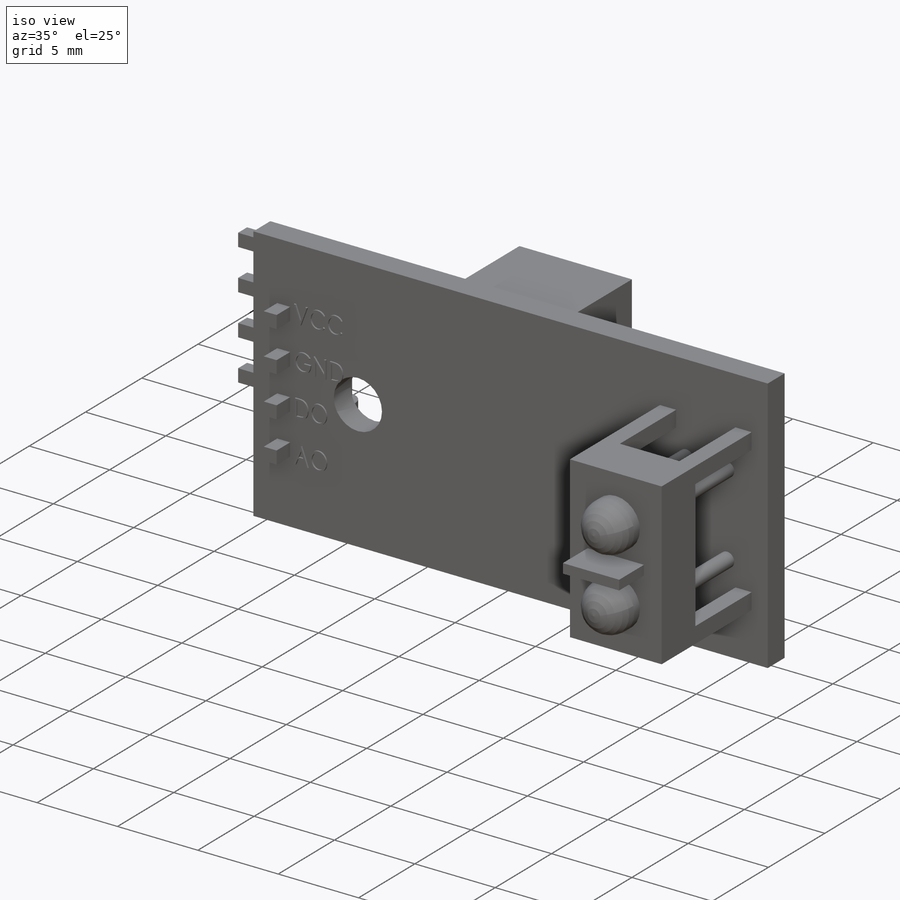
[diagram: iso view]
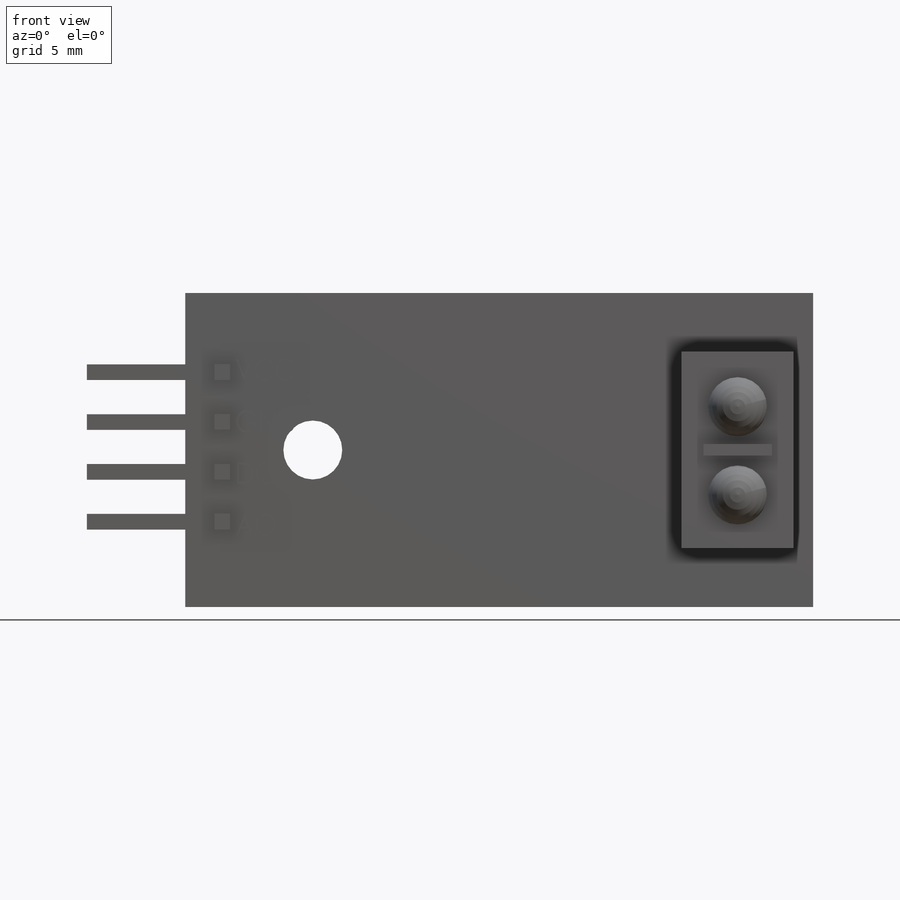
[diagram: front view]
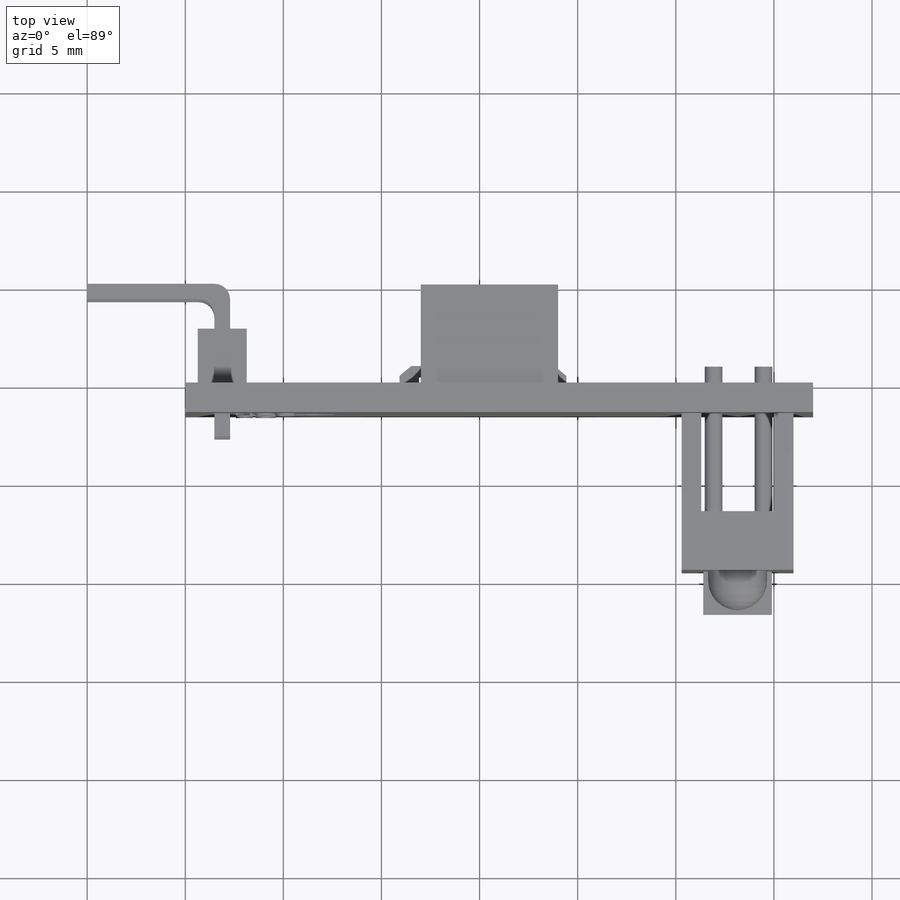
[diagram: top view]
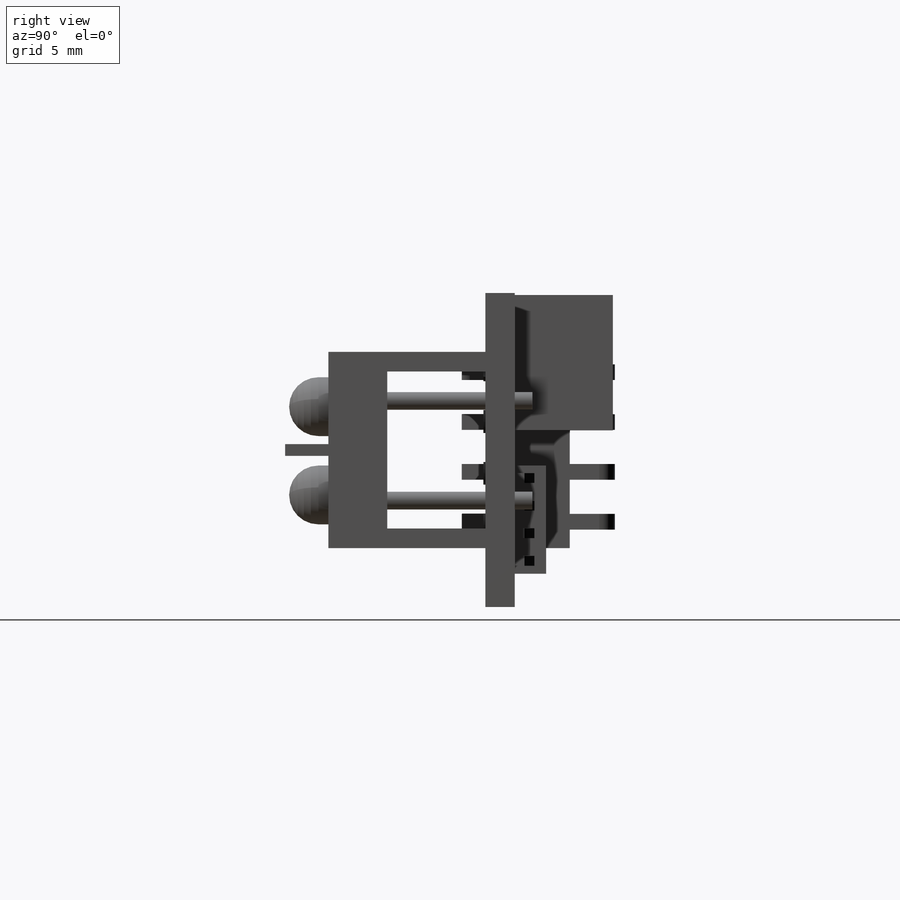
[diagram: right view]
SOLIDWORKS PART (.sldprt)
format: sldprt  version: not decoded by parser v0  size: 1,047,040 bytes
history: native  units: mm
features: sketch x21, extrude x13, cut_extrude x8, plane x3, fillet x2, chamfer x2, material x1 (+8 scaffold rows collapsed)
feature tree (58):
  scaffold x8  (default folders/planes/origin — collapsed)
  material  "Материал <не указан>"
  plane  "Спереди"
  plane  "Сверху"
  plane  "Справа"
  sketch  "Эскиз1"  dims[D3=3.0mm D1=32.0mm D2=16.0mm D4=6.5mm]
  extrude  "Бобышка-Вытянуть1"  Depth=1.5mm
  sketch  "Эскиз2"  dims[D1=10.0mm D2=5.7mm D3=1.0mm]
  extrude  "Бобышка-Вытянуть2"  Depth=8mm
  sketch  "Эскиз3"  dims[D1=0.6mm D2=3.5mm]
  extrude  "Бобышка-Вытянуть3"  Depth=2.2mm
  sketch  "Эскиз4"  dims[D2=3.0mm D1=4.5mm]
  extrude  "Бобышка-Вытянуть4"  Depth=2mm
  fillet  "Скругление1"  Radius=1.5mm
  sketch  "Эскиз5"  dims[D1=5.0mm D2=1.0mm D3=1.0mm]
  cut_extrude  "Вырез-Вытянуть1"  [1 undecoded]
  sketch  "Эскиз7"  dims[D1=5.0mm D2=1.0mm D3=1.0mm]
  cut_extrude  "Вырез-Вытянуть2"  [1 undecoded]
  sketch  "Эскиз8"  dims[D1=7.0mm D2=12.0mm]
  extrude  "Бобышка-Вытянуть5"  Depth=5mm
  sketch  "Эскиз9"  dims[D1=3.2mm]
  cut_extrude  "Вырез-Вытянуть3"  Depth=0.1mm
  sketch  "Эскиз10"  dims[D1=0.2mm D2=0.2mm]
  cut_extrude  "Вырез-Вытянуть4"  Depth=1mm
  sketch  "Эскиз11"  dims[D1=10.0mm D2=2.5mm]
  extrude  "Бобышка-Вытянуть6"  Depth=2.8mm
  sketch  "Эскиз12"  dims[D1=0.8mm D2=0.635mm D3=4.0]
  extrude  "Бобышка-Вытянуть7"  Depth=2.3mm
  sketch  "Эскиз13"  dims[D1=4.0]
  extrude  "Бобышка-Вытянуть8"  Depth=6.5mm
  fillet  "Скругление2"  Radius=0.8mm
  sketch  "Эскиз14"  dims[D1=0.8mm D2=4.0]
  extrude  "Бобышка-Вытянуть9"  Depth=1.2mm
  sketch  "Эскиз15"
  extrude  "Бобышка-Вытянуть10"  Depth=0.1mm
  sketch  "Эскиз16"
  cut_extrude  "Вырез-Вытянуть5"  Depth=0.1mm
  sketch  "Эскиз17"  dims[D1=0.9mm D2=2.0 D3=2.0]
  extrude  "Бобышка-Вытянуть11"  Depth=0.9mm
  sketch  "Эскиз18"  dims[D1=4.5mm D2=5.5mm]
  extrude  "Бобышка-Вытянуть12"  Depth=1.6mm
  sketch  "Эскиз19"  dims[D1=0.5mm D2=2.0mm D3=4.0]
  extrude  "Бобышка-Вытянуть13"  Depth=1mm
  chamfer  "Фаска1"  Distance=0.5mm Angle=50deg
  sketch  "Эскиз21"  dims[D1=0.5mm D2=1.0mm]
  cut_extrude  "Вырез-Вытянуть6"  Depth=5mm
  sketch  "Эскиз22"  dims[D1=0.5mm D2=1.0mm]
  cut_extrude  "Вырез-Вытянуть7"  Depth=5mm
  chamfer  "Фаска2"  Distance=0.5mm Angle=50deg
  sketch  "Эскиз23"
  cut_extrude  "Вырез-Вытянуть8"  Depth=0.1mm
decode coverage: 41 of 46 modeling features carry decoded parameters
note: 2 parameter values undecoded
note: suppression state not decoded; provenance and decode notes live in map.json
